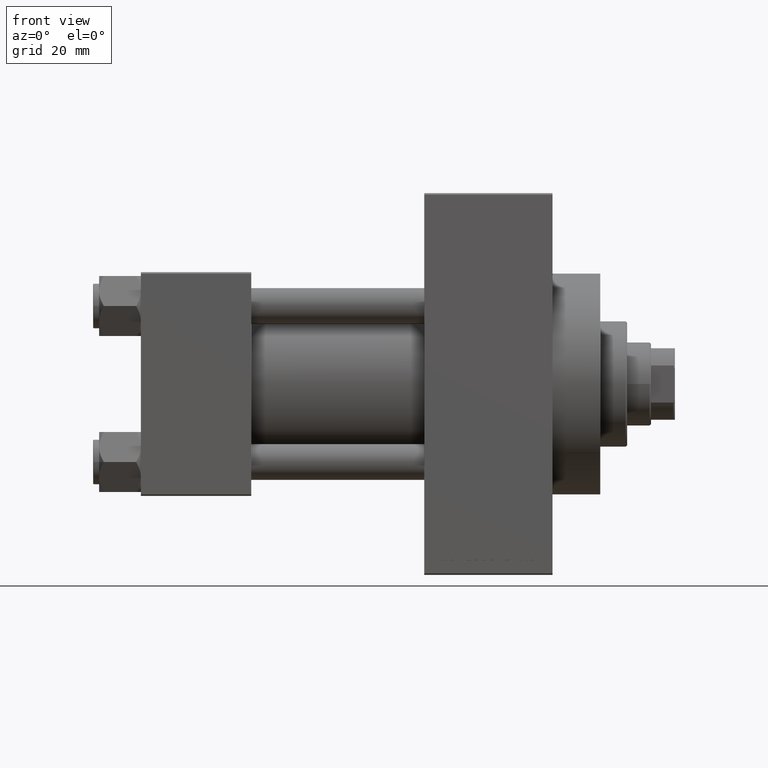
[diagram: clean part render]
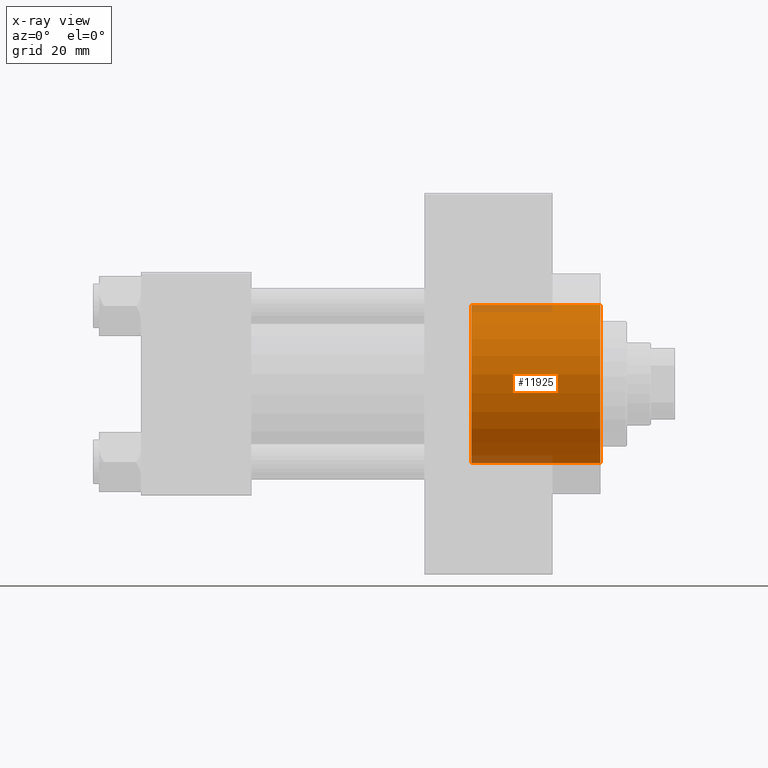
[diagram: x-ray — body ghosted, one internal face saturated and labeled with its STEP entity id]
A machine part, front view, then the same camera in x-ray: the body is ghosted and one INTERNAL B-rep face — a face not visible from any outside direction — is saturated and labeled: STEP entity #11925.
In plain terms, the highlighted cylindrical surface (partial cylindrical patch) has radius 26.5 mm, axis along (1, 0, 0).
Its self-contained STEP definition (entity closure, byte-faithful):
#1569 = VERTEX_POINT ( 'NONE', #6556 ) ;
#3984 = CARTESIAN_POINT ( 'NONE',  ( 110.7400000000000375, 0.000000000000000000, 0.000000000000000000 ) ) ;
#5296 = CARTESIAN_POINT ( 'NONE',  ( 154.0000000000000284, 0.000000000000000000, 0.000000000000000000 ) ) ;
#5864 = EDGE_CURVE ( 'NONE', #35593, #1569, #19909, .T. ) ;
#6556 = CARTESIAN_POINT ( 'NONE',  ( 110.7400000000000375, 0.000000000000000000, -26.50000000000000355 ) ) ;
#7547 = DIRECTION ( 'NONE',  ( 1.000000000000000000, 0.000000000000000000, 0.000000000000000000 ) ) ;
#9602 = ORIENTED_EDGE ( 'NONE', *, *, #22170, .F. ) ;
#9711 = CARTESIAN_POINT ( 'NONE',  ( 154.0000000000000284, 0.000000000000000000, -26.50000000000000355 ) ) ;
#10505 = DIRECTION ( 'NONE',  ( 0.000000000000000000, 0.000000000000000000, -1.000000000000000000 ) ) ;
#10890 = CARTESIAN_POINT ( 'NONE',  ( 110.7400000000000375, 3.245314017740486554E-15, 26.50000000000000355 ) ) ;
#11807 = CARTESIAN_POINT ( 'NONE',  ( 154.0000000000000284, 3.245314017740486554E-15, 26.50000000000000355 ) ) ;
#11925 = ADVANCED_FACE ( 'NONE', ( #31992 ), #46820, .F. ) ;
#13643 = LINE ( 'NONE', #19890, #38628 ) ;
#17094 = LINE ( 'NONE', #31420, #29262 ) ;
#19890 = CARTESIAN_POINT ( 'NONE',  ( 110.7400000000000375, 0.000000000000000000, -26.50000000000000355 ) ) ;
#19909 = CIRCLE ( 'NONE', #35924, 26.50000000000000355 ) ;
#20530 = DIRECTION ( 'NONE',  ( 1.000000000000000000, 0.000000000000000000, 0.000000000000000000 ) ) ;
#20579 = DIRECTION ( 'NONE',  ( 1.000000000000000000, -0.000000000000000000, -0.000000000000000000 ) ) ;
#21973 = VERTEX_POINT ( 'NONE', #9711 ) ;
#22170 = EDGE_CURVE ( 'NONE', #1569, #21973, #13643, .T. ) ;
#25078 = CARTESIAN_POINT ( 'NONE',  ( 110.7400000000000375, 0.000000000000000000, 0.000000000000000000 ) ) ;
#25447 = AXIS2_PLACEMENT_3D ( 'NONE', #5296, #20530, #46115 ) ;
#26838 = ORIENTED_EDGE ( 'NONE', *, *, #5864, .F. ) ;
#28783 = DIRECTION ( 'NONE',  ( 1.000000000000000000, -0.000000000000000000, -0.000000000000000000 ) ) ;
#29262 = VECTOR ( 'NONE', #28783, 1000.000000000000000 ) ;
#29981 = DIRECTION ( 'NONE',  ( 0.000000000000000000, 0.000000000000000000, -1.000000000000000000 ) ) ;
#31420 = CARTESIAN_POINT ( 'NONE',  ( 110.7400000000000375, 3.245314017740486554E-15, 26.50000000000000355 ) ) ;
#31992 = FACE_OUTER_BOUND ( 'NONE', #33009, .T. ) ;
#32734 = ORIENTED_EDGE ( 'NONE', *, *, #47041, .T. ) ;
#33009 = EDGE_LOOP ( 'NONE', ( #26838, #32734, #41851, #9602 ) ) ;
#33819 = CIRCLE ( 'NONE', #25447, 26.50000000000000355 ) ;
#35593 = VERTEX_POINT ( 'NONE', #10890 ) ;
#35924 = AXIS2_PLACEMENT_3D ( 'NONE', #3984, #7547, #29981 ) ;
#38423 = AXIS2_PLACEMENT_3D ( 'NONE', #25078, #43239, #10505 ) ;
#38425 = VERTEX_POINT ( 'NONE', #11807 ) ;
#38628 = VECTOR ( 'NONE', #20579, 1000.000000000000000 ) ;
#41851 = ORIENTED_EDGE ( 'NONE', *, *, #44619, .T. ) ;
#43239 = DIRECTION ( 'NONE',  ( 1.000000000000000000, -0.000000000000000000, -0.000000000000000000 ) ) ;
#44619 = EDGE_CURVE ( 'NONE', #38425, #21973, #33819, .T. ) ;
#46115 = DIRECTION ( 'NONE',  ( 0.000000000000000000, 0.000000000000000000, -1.000000000000000000 ) ) ;
#46820 = CYLINDRICAL_SURFACE ( 'NONE', #38423, 26.50000000000000355 ) ;
#47041 = EDGE_CURVE ( 'NONE', #35593, #38425, #17094, .T. ) ;